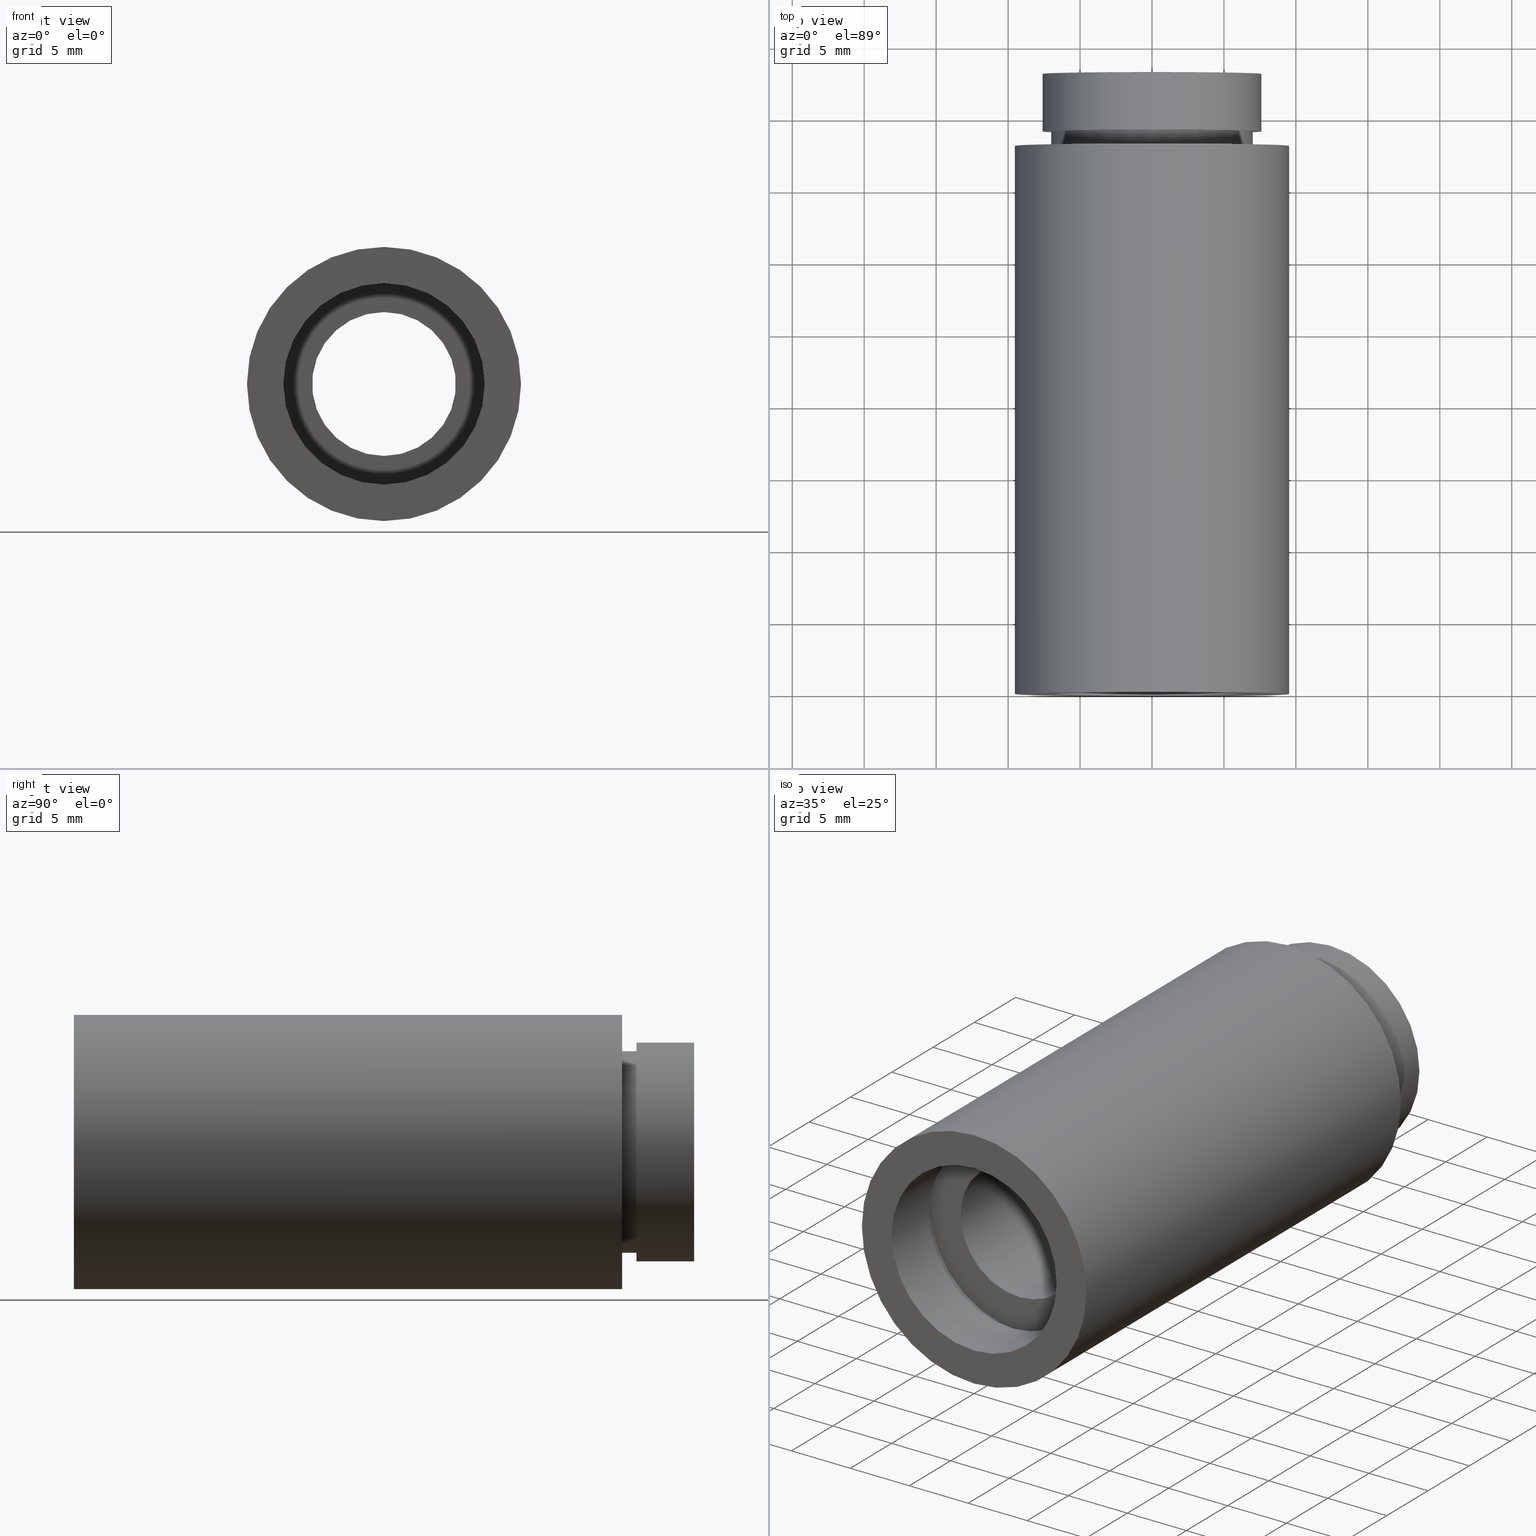
[diagram: canonical four-view strip — front | top / right | iso, engineering-drawing reading convention]
A machine part, canonical four-view strip (front | top / right | iso — engineering-drawing reading convention). The complete STEP part file that produces these views, byte-faithful:
ISO-10303-21;
HEADER;
FILE_DESCRIPTION (( 'STEP AP214' ),
    '1' );
FILE_NAME ('503090.STEP',
    '2019-09-11T06:27:03',
    ( '' ),
    ( '' ),
    'SwSTEP 2.0',
    'SolidWorks 2016',
    '' );
FILE_SCHEMA (( 'AUTOMOTIVE_DESIGN' ));
ENDSEC;

DATA;
#1 = DIRECTION ( 'NONE',  ( -0.0000000000000000000, 1.000000000000000000, -0.0000000000000000000 ) ) ;
#2 =( NAMED_UNIT ( * ) SI_UNIT ( $, .STERADIAN. ) SOLID_ANGLE_UNIT ( ) );
#3 = DIRECTION ( 'NONE',  ( 0.0000000000000000000, 0.0000000000000000000, 1.000000000000000000 ) ) ;
#4 = CIRCLE ( 'NONE', #182, 7.600000000000013000 ) ;
#5 = FILL_AREA_STYLE_COLOUR ( '', #354 ) ;
#6 = LINE ( 'NONE', #364, #163 ) ;
#7 = VERTEX_POINT ( 'NONE', #259 ) ;
#8 = SURFACE_SIDE_STYLE ('',( #289 ) ) ;
#9 = DIRECTION ( 'NONE',  ( 0.0000000000000000000, 0.0000000000000000000, 1.000000000000000000 ) ) ;
#10 = PRESENTATION_LAYER_ASSIGNMENT (  '', '', ( #539 ) ) ;
#11 =( LENGTH_UNIT ( ) NAMED_UNIT ( * ) SI_UNIT ( .MILLI., .METRE. ) );
#12 = CARTESIAN_POINT ( 'NONE',  ( 9.525000000000019900, 38.09999999999998700, 0.0000000000000000000 ) ) ;
#13 = PRESENTATION_LAYER_ASSIGNMENT (  '', '', ( #518 ) ) ;
#14 = CARTESIAN_POINT ( 'NONE',  ( 6.123233995736789000E-016, 43.09999999999998700, -5.000000000000019500 ) ) ;
#15 = LINE ( 'NONE', #415, #77 ) ;
#16 = VERTEX_POINT ( 'NONE', #64 ) ;
#17 = ORIENTED_EDGE ( 'NONE', *, *, #176, .T. ) ;
#18 = DIRECTION ( 'NONE',  ( 0.0000000000000000000, 0.0000000000000000000, 1.000000000000000000 ) ) ;
#19 = LINE ( 'NONE', #600, #408 ) ;
#20 = EDGE_LOOP ( 'NONE', ( #573, #215 ) ) ;
#21 = CIRCLE ( 'NONE', #411, 7.600000000000013000 ) ;
#22 = FILL_AREA_STYLE_COLOUR ( '', #464 ) ;
#23 = CARTESIAN_POINT ( 'NONE',  ( 0.0000000000000000000, 161.3761669434274500, 0.0000000000000000000 ) ) ;
#24 = FILL_AREA_STYLE ('',( #302 ) ) ;
#25 = CARTESIAN_POINT ( 'NONE',  ( 0.0000000000000000000, 4.499999999999976000, 0.0000000000000000000 ) ) ;
#26 = ORIENTED_EDGE ( 'NONE', *, *, #325, .T. ) ;
#27 = CYLINDRICAL_SURFACE ( 'NONE', #449, 7.000000000000020400 ) ;
#28 = CARTESIAN_POINT ( 'NONE',  ( 0.0000000000000000000, 5.499999999999976900, 0.0000000000000000000 ) ) ;
#29 = VERTEX_POINT ( 'NONE', #598 ) ;
#30 = EDGE_CURVE ( 'NONE', #151, #348, #451, .T. ) ;
#31 = MECHANICAL_DESIGN_GEOMETRIC_PRESENTATION_REPRESENTATION (  '', ( #46 ), #56 ) ;
#32 = CIRCLE ( 'NONE', #445, 7.600000000000013000 ) ;
#33 = ORIENTED_EDGE ( 'NONE', *, *, #30, .F. ) ;
#34 = DIRECTION ( 'NONE',  ( -0.0000000000000000000, 1.000000000000000000, -0.0000000000000000000 ) ) ;
#35 = FILL_AREA_STYLE_COLOUR ( '', #49 ) ;
#36 = DIRECTION ( 'NONE',  ( -0.0000000000000000000, 1.000000000000000000, -0.0000000000000000000 ) ) ;
#37 =( NAMED_UNIT ( * ) SI_UNIT ( $, .STERADIAN. ) SOLID_ANGLE_UNIT ( ) );
#38 = AXIS2_PLACEMENT_3D ( 'NONE', #608, #36, #116 ) ;
#39 = UNCERTAINTY_MEASURE_WITH_UNIT (LENGTH_MEASURE( 1.000000000000000100E-005 ), #333, 'distance_accuracy_value', 'NONE');
#40 = EDGE_LOOP ( 'NONE', ( #146, #602, #552, #270 ) ) ;
#41 = CARTESIAN_POINT ( 'NONE',  ( 0.0000000000000000000, 5.499999999999976900, 0.0000000000000000000 ) ) ;
#42 = ADVANCED_FACE ( 'NONE', ( #128 ), #556, .F. ) ;
#43 = VERTEX_POINT ( 'NONE', #597 ) ;
#44 = DIRECTION ( 'NONE',  ( 1.000000000000000000, 0.0000000000000000000, 0.0000000000000000000 ) ) ;
#45 = VERTEX_POINT ( 'NONE', #152 ) ;
#46 = STYLED_ITEM ( 'NONE', ( #208 ), #327 ) ;
#47 = CARTESIAN_POINT ( 'NONE',  ( 9.307315673519899300E-016, 39.09999999999999400, -7.600000000000013000 ) ) ;
#48 =( NAMED_UNIT ( * ) SI_UNIT ( $, .STERADIAN. ) SOLID_ANGLE_UNIT ( ) );
#49 = COLOUR_RGB ( '',1.000000000000000000, 1.000000000000000000, 1.000000000000000000 ) ;
#50 = DIRECTION ( 'NONE',  ( -0.0000000000000000000, 1.000000000000000000, -0.0000000000000000000 ) ) ;
#51 = EDGE_CURVE ( 'NONE', #70, #321, #66, .T. ) ;
#52 = ORIENTED_EDGE ( 'NONE', *, *, #81, .F. ) ;
#53 = SHAPE_DEFINITION_REPRESENTATION ( #396, #384 ) ;
#54 = ORIENTED_EDGE ( 'NONE', *, *, #553, .T. ) ;
#55 = EDGE_CURVE ( 'NONE', #622, #459, #209, .T. ) ;
#56 =( GEOMETRIC_REPRESENTATION_CONTEXT ( 3 ) GLOBAL_UNCERTAINTY_ASSIGNED_CONTEXT ( ( #461 ) ) GLOBAL_UNIT_ASSIGNED_CONTEXT ( ( #580, #189, #140 ) ) REPRESENTATION_CONTEXT ( 'NONE', 'WORKASPACE' ) );
#57 = CARTESIAN_POINT ( 'NONE',  ( 0.0000000000000000000, 43.09999999999998700, 0.0000000000000000000 ) ) ;
#58 = LINE ( 'NONE', #438, #172 ) ;
#59 = ORIENTED_EDGE ( 'NONE', *, *, #100, .F. ) ;
#60 = ORIENTED_EDGE ( 'NONE', *, *, #265, .F. ) ;
#61 = COLOUR_RGB ( '',1.000000000000000000, 1.000000000000000000, 1.000000000000000000 ) ;
#62 = DIRECTION ( 'NONE',  ( -0.0000000000000000000, 1.000000000000000000, -0.0000000000000000000 ) ) ;
#63 = UNCERTAINTY_MEASURE_WITH_UNIT (LENGTH_MEASURE( 1.000000000000000100E-005 ), #606, 'distance_accuracy_value', 'NONE');
#64 = CARTESIAN_POINT ( 'NONE',  ( 0.0000000000000000000, -2.775557561562891400E-014, 9.525000000000019900 ) ) ;
#65 = CIRCLE ( 'NONE', #87, 9.525000000000019900 ) ;
#66 = LINE ( 'NONE', #111, #447 ) ;
#67 = DIRECTION ( 'NONE',  ( -0.0000000000000000000, 1.000000000000000000, -0.0000000000000000000 ) ) ;
#68 = DIRECTION ( 'NONE',  ( -0.0000000000000000000, 1.000000000000000000, -0.0000000000000000000 ) ) ;
#69 = EDGE_CURVE ( 'NONE', #321, #495, #567, .T. ) ;
#70 = VERTEX_POINT ( 'NONE', #158 ) ;
#71 = EDGE_LOOP ( 'NONE', ( #202, #199 ) ) ;
#72 = ORIENTED_EDGE ( 'NONE', *, *, #368, .F. ) ;
#73 = DIRECTION ( 'NONE',  ( 0.0000000000000000000, 0.0000000000000000000, 1.000000000000000000 ) ) ;
#74 = CARTESIAN_POINT ( 'NONE',  ( 0.0000000000000000000, 39.09999999999999400, 0.0000000000000000000 ) ) ;
#75 = AXIS2_PLACEMENT_3D ( 'NONE', #366, #88, #123 ) ;
#76 = CARTESIAN_POINT ( 'NONE',  ( 0.0000000000000000000, 5.499999999999976900, 7.600000000000020100 ) ) ;
#77 = VECTOR ( 'NONE', #355, 1000.000000000000000 ) ;
#78 = UNCERTAINTY_MEASURE_WITH_UNIT (LENGTH_MEASURE( 1.000000000000000100E-005 ), #512, 'distance_accuracy_value', 'NONE');
#79 = FACE_OUTER_BOUND ( 'NONE', #474, .T. ) ;
#80 = FACE_BOUND ( 'NONE', #362, .T. ) ;
#81 = EDGE_CURVE ( 'NONE', #343, #503, #493, .T. ) ;
#82 = CARTESIAN_POINT ( 'NONE',  ( 0.0000000000000000000, 161.3761669434274500, 0.0000000000000000000 ) ) ;
#83 = DIRECTION ( 'NONE',  ( -0.0000000000000000000, 1.000000000000000000, -0.0000000000000000000 ) ) ;
#84 = DIRECTION ( 'NONE',  ( -0.0000000000000000000, 1.000000000000000000, 0.0000000000000000000 ) ) ;
#85 = EDGE_CURVE ( 'NONE', #7, #45, #276, .T. ) ;
#86 = ADVANCED_FACE ( 'NONE', ( #79 ), #609, .F. ) ;
#87 = AXIS2_PLACEMENT_3D ( 'NONE', #229, #611, #233 ) ;
#88 = DIRECTION ( 'NONE',  ( -0.0000000000000000000, 1.000000000000000000, -0.0000000000000000000 ) ) ;
#89 = ORIENTED_EDGE ( 'NONE', *, *, #261, .T. ) ;
#90 = CARTESIAN_POINT ( 'NONE',  ( 9.307315673519899300E-016, 43.09999999999998700, -7.600000000000013000 ) ) ;
#91 = ORIENTED_EDGE ( 'NONE', *, *, #325, .F. ) ;
#92 = CARTESIAN_POINT ( 'NONE',  ( 0.0000000000000000000, 161.3761669434274500, 5.000000000000019500 ) ) ;
#93 = CARTESIAN_POINT ( 'NONE',  ( 0.0000000000000000000, 43.09999999999998700, 0.0000000000000000000 ) ) ;
#94 = SURFACE_STYLE_FILL_AREA ( #24 ) ;
#95 =( NAMED_UNIT ( * ) PLANE_ANGLE_UNIT ( ) SI_UNIT ( $, .RADIAN. ) );
#96 = ORIENTED_EDGE ( 'NONE', *, *, #342, .F. ) ;
#97 = DIRECTION ( 'NONE',  ( 0.0000000000000000000, 0.0000000000000000000, 1.000000000000000000 ) ) ;
#98 =( GEOMETRIC_REPRESENTATION_CONTEXT ( 3 ) GLOBAL_UNCERTAINTY_ASSIGNED_CONTEXT ( ( #582 ) ) GLOBAL_UNIT_ASSIGNED_CONTEXT ( ( #596, #351, #305 ) ) REPRESENTATION_CONTEXT ( 'NONE', 'WORKASPACE' ) );
#99 = CARTESIAN_POINT ( 'NONE',  ( 0.0000000000000000000, -2.775557561562891400E-014, 7.000000000000019500 ) ) ;
#100 = EDGE_CURVE ( 'NONE', #495, #321, #106, .T. ) ;
#101 = FACE_OUTER_BOUND ( 'NONE', #550, .T. ) ;
#102 = ORIENTED_EDGE ( 'NONE', *, *, #250, .F. ) ;
#103 = EDGE_LOOP ( 'NONE', ( #400, #422, #17, #220 ) ) ;
#104 = FILL_AREA_STYLE ('',( #22 ) ) ;
#105 = LINE ( 'NONE', #277, #535 ) ;
#106 = CIRCLE ( 'NONE', #437, 5.000000000000019500 ) ;
#107 = CYLINDRICAL_SURFACE ( 'NONE', #442, 7.600000000000020100 ) ;
#108 = SURFACE_SIDE_STYLE ('',( #94 ) ) ;
#109 = EDGE_CURVE ( 'NONE', #16, #186, #486, .T. ) ;
#110 = ORIENTED_EDGE ( 'NONE', *, *, #250, .T. ) ;
#111 = CARTESIAN_POINT ( 'NONE',  ( 6.123233995736789000E-016, 161.3761669434274500, -5.000000000000019500 ) ) ;
#112 = EDGE_CURVE ( 'NONE', #590, #70, #185, .T. ) ;
#113 = AXIS2_PLACEMENT_3D ( 'NONE', #291, #337, #3 ) ;
#114 = ORIENTED_EDGE ( 'NONE', *, *, #143, .F. ) ;
#115 = DIRECTION ( 'NONE',  ( -0.0000000000000000000, 1.000000000000000000, -0.0000000000000000000 ) ) ;
#116 = DIRECTION ( 'NONE',  ( 0.0000000000000000000, 0.0000000000000000000, 1.000000000000000000 ) ) ;
#117 =( NAMED_UNIT ( * ) PLANE_ANGLE_UNIT ( ) SI_UNIT ( $, .RADIAN. ) );
#118 = CIRCLE ( 'NONE', #554, 5.000000000000019500 ) ;
#119 = CARTESIAN_POINT ( 'NONE',  ( 0.0000000000000000000, 43.09999999999998700, 0.0000000000000000000 ) ) ;
#120 = EDGE_LOOP ( 'NONE', ( #356, #54 ) ) ;
#121 = CARTESIAN_POINT ( 'NONE',  ( 7.600000000000020100, 5.499999999999984000, 0.0000000000000000000 ) ) ;
#122 = DIRECTION ( 'NONE',  ( 0.0000000000000000000, 0.0000000000000000000, 1.000000000000000000 ) ) ;
#123 = DIRECTION ( 'NONE',  ( 0.0000000000000000000, 0.0000000000000000000, 1.000000000000000000 ) ) ;
#124 = CARTESIAN_POINT ( 'NONE',  ( 0.0000000000000000000, -2.775557561562891400E-014, 0.0000000000000000000 ) ) ;
#125 = STYLED_ITEM ( 'NONE', ( #458 ), #429 ) ;
#126 = DIRECTION ( 'NONE',  ( 0.0000000000000000000, 0.0000000000000000000, 1.000000000000000000 ) ) ;
#127 = DIRECTION ( 'NONE',  ( 0.0000000000000000000, 0.0000000000000000000, 1.000000000000000000 ) ) ;
#128 = FACE_OUTER_BOUND ( 'NONE', #254, .T. ) ;
#129 = ADVANCED_FACE ( 'NONE', ( #314 ), #549, .T. ) ;
#130 = ORIENTED_EDGE ( 'NONE', *, *, #112, .T. ) ;
#131 = ORIENTED_EDGE ( 'NONE', *, *, #194, .T. ) ;
#132 = EDGE_CURVE ( 'NONE', #200, #329, #287, .T. ) ;
#133 = DIRECTION ( 'NONE',  ( 0.0000000000000000000, 0.0000000000000000000, 1.000000000000000000 ) ) ;
#134 = APPLICATION_CONTEXT ( 'automotive_design' ) ;
#135 =( LENGTH_UNIT ( ) NAMED_UNIT ( * ) SI_UNIT ( .MILLI., .METRE. ) );
#136 = CIRCLE ( 'NONE', #352, 7.000000000000020400 ) ;
#137 = AXIS2_PLACEMENT_3D ( 'NONE', #479, #187, #44 ) ;
#138 = ORIENTED_EDGE ( 'NONE', *, *, #176, .F. ) ;
#139 = APPLICATION_PROTOCOL_DEFINITION ( 'draft international standard', 'automotive_design', 1998, #378 ) ;
#140 =( NAMED_UNIT ( * ) SI_UNIT ( $, .STERADIAN. ) SOLID_ANGLE_UNIT ( ) );
#141 = MECHANICAL_DESIGN_GEOMETRIC_PRESENTATION_REPRESENTATION (  '', ( #216 ), #98 ) ;
#142 = DIRECTION ( 'NONE',  ( 0.0000000000000000000, 0.0000000000000000000, 1.000000000000000000 ) ) ;
#143 = EDGE_CURVE ( 'NONE', #503, #29, #19, .T. ) ;
#144 = ORIENTED_EDGE ( 'NONE', *, *, #265, .T. ) ;
#145 = PRESENTATION_STYLE_ASSIGNMENT (( #335 ) ) ;
#146 = ORIENTED_EDGE ( 'NONE', *, *, #85, .T. ) ;
#147 = ORIENTED_EDGE ( 'NONE', *, *, #148, .F. ) ;
#148 = EDGE_CURVE ( 'NONE', #343, #508, #6, .T. ) ;
#149 = DIRECTION ( 'NONE',  ( 0.0000000000000000000, -0.0000000000000000000, -1.000000000000000000 ) ) ;
#150 = AXIS2_PLACEMENT_3D ( 'NONE', #421, #526, #586 ) ;
#151 = VERTEX_POINT ( 'NONE', #76 ) ;
#152 = CARTESIAN_POINT ( 'NONE',  ( 8.572527594031490000E-016, 38.09999999999999400, -7.000000000000014200 ) ) ;
#153 = DIRECTION ( 'NONE',  ( -0.0000000000000000000, 1.000000000000000000, -0.0000000000000000000 ) ) ;
#154 = EDGE_CURVE ( 'NONE', #346, #218, #393, .T. ) ;
#155 = ORIENTED_EDGE ( 'NONE', *, *, #345, .F. ) ;
#156 = PRESENTATION_LAYER_ASSIGNMENT (  '', '', ( #125 ) ) ;
#157 = ORIENTED_EDGE ( 'NONE', *, *, #255, .T. ) ;
#158 = CARTESIAN_POINT ( 'NONE',  ( 6.123233995736789000E-016, 5.499999999999976900, -5.000000000000019500 ) ) ;
#159 = ORIENTED_EDGE ( 'NONE', *, *, #148, .T. ) ;
#160 = EDGE_CURVE ( 'NONE', #186, #16, #65, .T. ) ;
#161 = SURFACE_STYLE_USAGE ( .BOTH. , #304 ) ;
#162 = FILL_AREA_STYLE ('',( #605 ) ) ;
#163 = VECTOR ( 'NONE', #223, 1000.000000000000000 ) ;
#164 = EDGE_LOOP ( 'NONE', ( #588, #157 ) ) ;
#165 = DIRECTION ( 'NONE',  ( -0.0000000000000000000, 1.000000000000000000, -0.0000000000000000000 ) ) ;
#166 = CARTESIAN_POINT ( 'NONE',  ( 0.0000000000000000000, 161.3761669434274500, 0.0000000000000000000 ) ) ;
#167 = DIRECTION ( 'NONE',  ( 0.0000000000000000000, 0.0000000000000000000, 1.000000000000000000 ) ) ;
#168 = AXIS2_PLACEMENT_3D ( 'NONE', #203, #540, #149 ) ;
#169 = DIRECTION ( 'NONE',  ( -0.0000000000000000000, 1.000000000000000000, -0.0000000000000000000 ) ) ;
#170 = CARTESIAN_POINT ( 'NONE',  ( 0.0000000000000000000, 38.09999999999999400, 0.0000000000000000000 ) ) ;
#171 = CARTESIAN_POINT ( 'NONE',  ( 7.000000000000019500, -1.650046791174882700E-014, 0.0000000000000000000 ) ) ;
#172 = VECTOR ( 'NONE', #488, 1000.000000000000000 ) ;
#173 = DIRECTION ( 'NONE',  ( -0.0000000000000000000, 1.000000000000000000, -0.0000000000000000000 ) ) ;
#174 = COLOUR_RGB ( '',1.000000000000000000, 1.000000000000000000, 1.000000000000000000 ) ;
#175 = PRESENTATION_STYLE_ASSIGNMENT (( #531 ) ) ;
#176 = EDGE_CURVE ( 'NONE', #16, #391, #15, .T. ) ;
#177 = ORIENTED_EDGE ( 'NONE', *, *, #109, .F. ) ;
#178 = ADVANCED_FACE ( 'NONE', ( #319, #252 ), #219, .F. ) ;
#179 = CARTESIAN_POINT ( 'NONE',  ( 0.0000000000000000000, 4.499999999999976000, 0.0000000000000000000 ) ) ;
#180 = CARTESIAN_POINT ( 'NONE',  ( 0.0000000000000000000, 38.09999999999999400, 0.0000000000000000000 ) ) ;
#181 = EDGE_CURVE ( 'NONE', #186, #476, #105, .T. ) ;
#182 = AXIS2_PLACEMENT_3D ( 'NONE', #57, #492, #349 ) ;
#183 = DIRECTION ( 'NONE',  ( 0.0000000000000000000, 0.0000000000000000000, 1.000000000000000000 ) ) ;
#184 = ORIENTED_EDGE ( 'NONE', *, *, #69, .F. ) ;
#185 = CIRCLE ( 'NONE', #467, 5.000000000000019500 ) ;
#186 = VERTEX_POINT ( 'NONE', #320 ) ;
#187 = DIRECTION ( 'NONE',  ( 0.0000000000000000000, 0.0000000000000000000, 1.000000000000000000 ) ) ;
#188 = SURFACE_STYLE_FILL_AREA ( #316 ) ;
#189 =( NAMED_UNIT ( * ) PLANE_ANGLE_UNIT ( ) SI_UNIT ( $, .RADIAN. ) );
#190 = LINE ( 'NONE', #92, #257 ) ;
#191 = AXIS2_PLACEMENT_3D ( 'NONE', #171, #84, #566 ) ;
#192 = ORIENTED_EDGE ( 'NONE', *, *, #282, .T. ) ;
#193 = FACE_OUTER_BOUND ( 'NONE', #456, .T. ) ;
#194 = EDGE_CURVE ( 'NONE', #503, #343, #515, .T. ) ;
#195 =( NAMED_UNIT ( * ) PLANE_ANGLE_UNIT ( ) SI_UNIT ( $, .RADIAN. ) );
#196 = AXIS2_PLACEMENT_3D ( 'NONE', #621, #328, #279 ) ;
#197 = FILL_AREA_STYLE_COLOUR ( '', #465 ) ;
#198 = EDGE_CURVE ( 'NONE', #391, #476, #525, .T. ) ;
#199 = ORIENTED_EDGE ( 'NONE', *, *, #376, .T. ) ;
#200 = VERTEX_POINT ( 'NONE', #516 ) ;
#201 = STYLED_ITEM ( 'NONE', ( #175 ), #384 ) ;
#202 = ORIENTED_EDGE ( 'NONE', *, *, #342, .T. ) ;
#203 = CARTESIAN_POINT ( 'NONE',  ( 7.000000000000020400, 4.499999999999983100, 0.0000000000000000000 ) ) ;
#204 = AXIS2_PLACEMENT_3D ( 'NONE', #221, #563, #167 ) ;
#205 = DIRECTION ( 'NONE',  ( 0.0000000000000000000, -1.000000000000000000, 0.0000000000000000000 ) ) ;
#206 = FACE_OUTER_BOUND ( 'NONE', #20, .T. ) ;
#207 = DIRECTION ( 'NONE',  ( 0.0000000000000000000, 0.0000000000000000000, 1.000000000000000000 ) ) ;
#208 = PRESENTATION_STYLE_ASSIGNMENT (( #381 ) ) ;
#209 = CIRCLE ( 'NONE', #211, 7.600000000000019200 ) ;
#210 = DIRECTION ( 'NONE',  ( -0.0000000000000000000, 1.000000000000000000, -0.0000000000000000000 ) ) ;
#211 = AXIS2_PLACEMENT_3D ( 'NONE', #25, #67, #353 ) ;
#212 = UNCERTAINTY_MEASURE_WITH_UNIT (LENGTH_MEASURE( 1.000000000000000100E-005 ), #522, 'distance_accuracy_value', 'NONE');
#213 = AXIS2_PLACEMENT_3D ( 'NONE', #468, #470, #290 ) ;
#214 = EDGE_CURVE ( 'NONE', #590, #495, #190, .T. ) ;
#215 = ORIENTED_EDGE ( 'NONE', *, *, #612, .T. ) ;
#216 = STYLED_ITEM ( 'NONE', ( #446 ), #424 ) ;
#217 = CYLINDRICAL_SURFACE ( 'NONE', #395, 7.600000000000013000 ) ;
#218 = VERTEX_POINT ( 'NONE', #90 ) ;
#219 = PLANE ( 'NONE',  #246 ) ;
#220 = ORIENTED_EDGE ( 'NONE', *, *, #255, .F. ) ;
#221 = CARTESIAN_POINT ( 'NONE',  ( 0.0000000000000000000, 161.3761669434274500, 0.0000000000000000000 ) ) ;
#222 = DIRECTION ( 'NONE',  ( -0.0000000000000000000, 1.000000000000000000, -0.0000000000000000000 ) ) ;
#223 = DIRECTION ( 'NONE',  ( -0.0000000000000000000, 1.000000000000000000, -0.0000000000000000000 ) ) ;
#224 = COLOUR_RGB ( '',1.000000000000000000, 1.000000000000000000, 1.000000000000000000 ) ;
#225 = PLANE ( 'NONE',  #482 ) ;
#226 = PRODUCT ( '503090', '503090', '', ( #426 ) ) ;
#227 = CARTESIAN_POINT ( 'NONE',  ( 0.0000000000000000000, 5.499999999999976900, 0.0000000000000000000 ) ) ;
#228 = CARTESIAN_POINT ( 'NONE',  ( 0.0000000000000000000, 39.09999999999999400, 0.0000000000000000000 ) ) ;
#229 = CARTESIAN_POINT ( 'NONE',  ( 0.0000000000000000000, -2.775557561562891400E-014, 0.0000000000000000000 ) ) ;
#230 = UNCERTAINTY_MEASURE_WITH_UNIT (LENGTH_MEASURE( 1.000000000000000100E-005 ), #11, 'distance_accuracy_value', 'NONE');
#231 = MECHANICAL_DESIGN_GEOMETRIC_PRESENTATION_REPRESENTATION (  '', ( #547 ), #262 ) ;
#232 =( NAMED_UNIT ( * ) SI_UNIT ( $, .STERADIAN. ) SOLID_ANGLE_UNIT ( ) );
#233 = DIRECTION ( 'NONE',  ( 0.0000000000000000000, 0.0000000000000000000, 1.000000000000000000 ) ) ;
#234 =( NAMED_UNIT ( * ) PLANE_ANGLE_UNIT ( ) SI_UNIT ( $, .RADIAN. ) );
#235 = ORIENTED_EDGE ( 'NONE', *, *, #501, .T. ) ;
#236 = FACE_OUTER_BOUND ( 'NONE', #164, .T. ) ;
#237 = ORIENTED_EDGE ( 'NONE', *, *, #143, .T. ) ;
#238 = CARTESIAN_POINT ( 'NONE',  ( 0.0000000000000000000, 161.3761669434274500, 0.0000000000000000000 ) ) ;
#239 = DIRECTION ( 'NONE',  ( 0.0000000000000000000, 0.0000000000000000000, 1.000000000000000000 ) ) ;
#240 = ADVANCED_FACE ( 'NONE', ( #399 ), #306, .T. ) ;
#241 = CARTESIAN_POINT ( 'NONE',  ( 7.600000000000013000, 43.09999999999998700, 0.0000000000000000000 ) ) ;
#242 = SURFACE_SIDE_STYLE ('',( #371 ) ) ;
#243 = MECHANICAL_DESIGN_GEOMETRIC_PRESENTATION_REPRESENTATION (  '', ( #201 ), #267 ) ;
#244 = SURFACE_SIDE_STYLE ('',( #485 ) ) ;
#245 = ORIENTED_EDGE ( 'NONE', *, *, #112, .F. ) ;
#246 = AXIS2_PLACEMENT_3D ( 'NONE', #241, #614, #475 ) ;
#247 = FACE_BOUND ( 'NONE', #599, .T. ) ;
#248 =( NAMED_UNIT ( * ) PLANE_ANGLE_UNIT ( ) SI_UNIT ( $, .RADIAN. ) );
#249 = PLANE ( 'NONE',  #311 ) ;
#250 = EDGE_CURVE ( 'NONE', #459, #348, #607, .T. ) ;
#251 = ORIENTED_EDGE ( 'NONE', *, *, #51, .F. ) ;
#252 = FACE_OUTER_BOUND ( 'NONE', #71, .T. ) ;
#253 = PRESENTATION_STYLE_ASSIGNMENT (( #435 ) ) ;
#254 = EDGE_LOOP ( 'NONE', ( #102, #295, #410, #288 ) ) ;
#255 = EDGE_CURVE ( 'NONE', #476, #391, #268, .T. ) ;
#256 = MECHANICAL_DESIGN_GEOMETRIC_PRESENTATION_REPRESENTATION (  '', ( #125 ), #283 ) ;
#257 = VECTOR ( 'NONE', #173, 1000.000000000000000 ) ;
#258 = ORIENTED_EDGE ( 'NONE', *, *, #214, .T. ) ;
#259 = CARTESIAN_POINT ( 'NONE',  ( 0.0000000000000000000, 38.09999999999999400, 7.000000000000014200 ) ) ;
#260 = DIRECTION ( 'NONE',  ( 0.0000000000000000000, 0.0000000000000000000, 1.000000000000000000 ) ) ;
#261 = EDGE_CURVE ( 'NONE', #70, #590, #118, .T. ) ;
#262 =( GEOMETRIC_REPRESENTATION_CONTEXT ( 3 ) GLOBAL_UNCERTAINTY_ASSIGNED_CONTEXT ( ( #78 ) ) GLOBAL_UNIT_ASSIGNED_CONTEXT ( ( #512, #117, #317 ) ) REPRESENTATION_CONTEXT ( 'NONE', 'WORKASPACE' ) );
#263 = COLOUR_RGB ( '',1.000000000000000000, 1.000000000000000000, 1.000000000000000000 ) ;
#264 = ORIENTED_EDGE ( 'NONE', *, *, #214, .F. ) ;
#265 = EDGE_CURVE ( 'NONE', #45, #7, #389, .T. ) ;
#266 = CARTESIAN_POINT ( 'NONE',  ( 0.0000000000000000000, 43.09999999999998700, 0.0000000000000000000 ) ) ;
#267 =( GEOMETRIC_REPRESENTATION_CONTEXT ( 3 ) GLOBAL_UNCERTAINTY_ASSIGNED_CONTEXT ( ( #39 ) ) GLOBAL_UNIT_ASSIGNED_CONTEXT ( ( #333, #248, #380 ) ) REPRESENTATION_CONTEXT ( 'NONE', 'WORKASPACE' ) );
#268 = CIRCLE ( 'NONE', #326, 9.525000000000019900 ) ;
#269 = DIRECTION ( 'NONE',  ( -0.0000000000000000000, 1.000000000000000000, -0.0000000000000000000 ) ) ;
#270 = ORIENTED_EDGE ( 'NONE', *, *, #454, .F. ) ;
#271 = DIRECTION ( 'NONE',  ( -0.0000000000000000000, 1.000000000000000000, -0.0000000000000000000 ) ) ;
#272 = AXIS2_PLACEMENT_3D ( 'NONE', #124, #575, #281 ) ;
#273 = SURFACE_STYLE_USAGE ( .BOTH. , #414 ) ;
#274 = ORIENTED_EDGE ( 'NONE', *, *, #109, .T. ) ;
#275 = DIRECTION ( 'NONE',  ( 0.0000000000000000000, 0.0000000000000000000, 1.000000000000000000 ) ) ;
#276 = CIRCLE ( 'NONE', #504, 7.000000000000014200 ) ;
#277 = CARTESIAN_POINT ( 'NONE',  ( 1.166476076187856400E-015, 161.3761669434274500, -9.525000000000019900 ) ) ;
#278 = ORIENTED_EDGE ( 'NONE', *, *, #612, .F. ) ;
#279 = DIRECTION ( 'NONE',  ( 0.0000000000000000000, 0.0000000000000000000, 1.000000000000000000 ) ) ;
#280 = ADVANCED_FACE ( 'NONE', ( #299, #565 ), #331, .F. ) ;
#281 = DIRECTION ( 'NONE',  ( 0.0000000000000000000, 0.0000000000000000000, 1.000000000000000000 ) ) ;
#282 = EDGE_CURVE ( 'NONE', #29, #508, #136, .T. ) ;
#283 =( GEOMETRIC_REPRESENTATION_CONTEXT ( 3 ) GLOBAL_UNCERTAINTY_ASSIGNED_CONTEXT ( ( #212 ) ) GLOBAL_UNIT_ASSIGNED_CONTEXT ( ( #522, #95, #37 ) ) REPRESENTATION_CONTEXT ( 'NONE', 'WORKASPACE' ) );
#284 = ADVANCED_FACE ( 'NONE', ( #502 ), #359, .T. ) ;
#285 = CARTESIAN_POINT ( 'NONE',  ( 0.0000000000000000000, 4.499999999999976000, 7.600000000000019200 ) ) ;
#286 = FACE_BOUND ( 'NONE', #315, .T. ) ;
#287 = CIRCLE ( 'NONE', #478, 7.000000000000014200 ) ;
#288 = ORIENTED_EDGE ( 'NONE', *, *, #30, .T. ) ;
#289 = SURFACE_STYLE_FILL_AREA ( #385 ) ;
#290 = DIRECTION ( 'NONE',  ( 0.0000000000000000000, 0.0000000000000000000, 1.000000000000000000 ) ) ;
#291 = CARTESIAN_POINT ( 'NONE',  ( 0.0000000000000000000, 161.3761669434274500, 0.0000000000000000000 ) ) ;
#292 = DIRECTION ( 'NONE',  ( -0.0000000000000000000, 1.000000000000000000, -0.0000000000000000000 ) ) ;
#293 = CYLINDRICAL_SURFACE ( 'NONE', #113, 7.000000000000020400 ) ;
#294 = DIRECTION ( 'NONE',  ( -0.0000000000000000000, 1.000000000000000000, -0.0000000000000000000 ) ) ;
#295 = ORIENTED_EDGE ( 'NONE', *, *, #55, .F. ) ;
#296 = AXIS2_PLACEMENT_3D ( 'NONE', #238, #569, #471 ) ;
#297 = CIRCLE ( 'NONE', #462, 7.600000000000019200 ) ;
#298 = ORIENTED_EDGE ( 'NONE', *, *, #368, .T. ) ;
#299 = FACE_OUTER_BOUND ( 'NONE', #401, .T. ) ;
#300 = ORIENTED_EDGE ( 'NONE', *, *, #261, .F. ) ;
#301 = CARTESIAN_POINT ( 'NONE',  ( 0.0000000000000000000, 38.09999999999999400, 9.525000000000019900 ) ) ;
#302 = FILL_AREA_STYLE_COLOUR ( '', #224 ) ;
#303 = AXIS2_PLACEMENT_3D ( 'NONE', #340, #50, #18 ) ;
#304 = SURFACE_SIDE_STYLE ('',( #318 ) ) ;
#305 =( NAMED_UNIT ( * ) SI_UNIT ( $, .STERADIAN. ) SOLID_ANGLE_UNIT ( ) );
#306 = CYLINDRICAL_SURFACE ( 'NONE', #296, 9.525000000000019900 ) ;
#307 = VECTOR ( 'NONE', #292, 1000.000000000000000 ) ;
#308 = ORIENTED_EDGE ( 'NONE', *, *, #181, .T. ) ;
#309 = DIRECTION ( 'NONE',  ( 0.0000000000000000000, 0.0000000000000000000, 1.000000000000000000 ) ) ;
#310 = AXIS2_PLACEMENT_3D ( 'NONE', #28, #499, #207 ) ;
#311 = AXIS2_PLACEMENT_3D ( 'NONE', #12, #205, #497 ) ;
#312 = SURFACE_SIDE_STYLE ('',( #584 ) ) ;
#313 = FACE_OUTER_BOUND ( 'NONE', #373, .T. ) ;
#314 = FACE_OUTER_BOUND ( 'NONE', #394, .T. ) ;
#315 = EDGE_LOOP ( 'NONE', ( #558, #60 ) ) ;
#316 = FILL_AREA_STYLE ('',( #35 ) ) ;
#317 =( NAMED_UNIT ( * ) SI_UNIT ( $, .STERADIAN. ) SOLID_ANGLE_UNIT ( ) );
#318 = SURFACE_STYLE_FILL_AREA ( #104 ) ;
#319 = FACE_BOUND ( 'NONE', #543, .T. ) ;
#320 = CARTESIAN_POINT ( 'NONE',  ( 1.166476076187856400E-015, -2.775557561562891400E-014, -9.525000000000019900 ) ) ;
#321 = VERTEX_POINT ( 'NONE', #14 ) ;
#322 = CIRCLE ( 'NONE', #545, 7.000000000000014200 ) ;
#323 = DIRECTION ( 'NONE',  ( -0.0000000000000000000, 1.000000000000000000, -0.0000000000000000000 ) ) ;
#324 = MANIFOLD_SOLID_BREP ( '��ת1', #619 ) ;
#325 = EDGE_CURVE ( 'NONE', #348, #151, #594, .T. ) ;
#326 = AXIS2_PLACEMENT_3D ( 'NONE', #180, #521, #183 ) ;
#327 = ADVANCED_FACE ( 'NONE', ( #418 ), #293, .F. ) ;
#328 = DIRECTION ( 'NONE',  ( -0.0000000000000000000, 1.000000000000000000, -0.0000000000000000000 ) ) ;
#329 = VERTEX_POINT ( 'NONE', #441 ) ;
#330 = ORIENTED_EDGE ( 'NONE', *, *, #154, .F. ) ;
#331 = PLANE ( 'NONE',  #150 ) ;
#332 = ORIENTED_EDGE ( 'NONE', *, *, #69, .T. ) ;
#333 =( LENGTH_UNIT ( ) NAMED_UNIT ( * ) SI_UNIT ( .MILLI., .METRE. ) );
#334 = CARTESIAN_POINT ( 'NONE',  ( 8.572527594031490000E-016, 161.3761669434274500, -7.000000000000014200 ) ) ;
#335 = SURFACE_STYLE_USAGE ( .BOTH. , #244 ) ;
#336 = PRODUCT_DEFINITION ( 'δ֪', '', #453, #534 ) ;
#337 = DIRECTION ( 'NONE',  ( -0.0000000000000000000, 1.000000000000000000, -0.0000000000000000000 ) ) ;
#338 = ORIENTED_EDGE ( 'NONE', *, *, #198, .F. ) ;
#339 = FILL_AREA_STYLE_COLOUR ( '', #263 ) ;
#340 = CARTESIAN_POINT ( 'NONE',  ( 0.0000000000000000000, 39.09999999999999400, 0.0000000000000000000 ) ) ;
#341 = FILL_AREA_STYLE ('',( #197 ) ) ;
#342 = EDGE_CURVE ( 'NONE', #43, #218, #32, .T. ) ;
#343 = VERTEX_POINT ( 'NONE', #99 ) ;
#344 = CYLINDRICAL_SURFACE ( 'NONE', #196, 5.000000000000019500 ) ;
#345 = EDGE_CURVE ( 'NONE', #390, #43, #58, .T. ) ;
#346 = VERTEX_POINT ( 'NONE', #47 ) ;
#347 = STYLED_ITEM ( 'NONE', ( #524 ), #469 ) ;
#348 = VERTEX_POINT ( 'NONE', #583 ) ;
#349 = DIRECTION ( 'NONE',  ( 0.0000000000000000000, 0.0000000000000000000, 1.000000000000000000 ) ) ;
#350 = ORIENTED_EDGE ( 'NONE', *, *, #423, .T. ) ;
#351 =( NAMED_UNIT ( * ) PLANE_ANGLE_UNIT ( ) SI_UNIT ( $, .RADIAN. ) );
#352 = AXIS2_PLACEMENT_3D ( 'NONE', #487, #484, #97 ) ;
#353 = DIRECTION ( 'NONE',  ( 0.0000000000000000000, 0.0000000000000000000, 1.000000000000000000 ) ) ;
#354 = COLOUR_RGB ( '',1.000000000000000000, 1.000000000000000000, 1.000000000000000000 ) ;
#355 = DIRECTION ( 'NONE',  ( -0.0000000000000000000, 1.000000000000000000, -0.0000000000000000000 ) ) ;
#356 = ORIENTED_EDGE ( 'NONE', *, *, #132, .T. ) ;
#357 = CARTESIAN_POINT ( 'NONE',  ( 0.0000000000000000000, 161.3761669434274500, 0.0000000000000000000 ) ) ;
#358 = FACE_OUTER_BOUND ( 'NONE', #444, .T. ) ;
#359 = CYLINDRICAL_SURFACE ( 'NONE', #489, 7.000000000000014200 ) ;
#360 = PRODUCT_RELATED_PRODUCT_CATEGORY ( 'part', '', ( #226 ) ) ;
#361 = DIRECTION ( 'NONE',  ( 0.0000000000000000000, 0.0000000000000000000, 1.000000000000000000 ) ) ;
#362 = EDGE_LOOP ( 'NONE', ( #527, #131 ) ) ;
#363 = FACE_OUTER_BOUND ( 'NONE', #374, .T. ) ;
#364 = CARTESIAN_POINT ( 'NONE',  ( 0.0000000000000000000, 161.3761669434274500, 7.000000000000020400 ) ) ;
#365 = CARTESIAN_POINT ( 'NONE',  ( 0.0000000000000000000, 39.09999999999999400, 0.0000000000000000000 ) ) ;
#366 = CARTESIAN_POINT ( 'NONE',  ( 0.0000000000000000000, 161.3761669434274500, 0.0000000000000000000 ) ) ;
#367 = DIRECTION ( 'NONE',  ( -0.0000000000000000000, 1.000000000000000000, -0.0000000000000000000 ) ) ;
#368 = EDGE_CURVE ( 'NONE', #346, #390, #541, .T. ) ;
#369 = FILL_AREA_STYLE_COLOUR ( '', #61 ) ;
#370 = ADVANCED_FACE ( 'NONE', ( #286, #236 ), #249, .F. ) ;
#371 = SURFACE_STYLE_FILL_AREA ( #341 ) ;
#372 = CARTESIAN_POINT ( 'NONE',  ( 9.307315673519909100E-016, 161.3761669434274500, -7.600000000000020100 ) ) ;
#373 = EDGE_LOOP ( 'NONE', ( #114, #52, #159, #350 ) ) ;
#374 = EDGE_LOOP ( 'NONE', ( #278, #110, #26, #430 ) ) ;
#375 = DIRECTION ( 'NONE',  ( -0.0000000000000000000, 1.000000000000000000, 0.0000000000000000000 ) ) ;
#376 = EDGE_CURVE ( 'NONE', #218, #43, #4, .T. ) ;
#377 = PRESENTATION_LAYER_ASSIGNMENT (  '', '', ( #347 ) ) ;
#378 = APPLICATION_CONTEXT ( 'automotive_design' ) ;
#379 = ADVANCED_FACE ( 'NONE', ( #592, #206 ), #591, .F. ) ;
#380 =( NAMED_UNIT ( * ) SI_UNIT ( $, .STERADIAN. ) SOLID_ANGLE_UNIT ( ) );
#381 = SURFACE_STYLE_USAGE ( .BOTH. , #242 ) ;
#382 = ORIENTED_EDGE ( 'NONE', *, *, #618, .F. ) ;
#383 = DIRECTION ( 'NONE',  ( -0.0000000000000000000, 1.000000000000000000, -0.0000000000000000000 ) ) ;
#384 = ADVANCED_BREP_SHAPE_REPRESENTATION ( '503090', ( #324, #137 ), #572 ) ;
#385 = FILL_AREA_STYLE ('',( #339 ) ) ;
#386 = CARTESIAN_POINT ( 'NONE',  ( 0.0000000000000000000, 161.3761669434274500, 0.0000000000000000000 ) ) ;
#387 = EDGE_CURVE ( 'NONE', #622, #151, #407, .T. ) ;
#388 = MECHANICAL_DESIGN_GEOMETRIC_PRESENTATION_REPRESENTATION (  '', ( #518 ), #533 ) ;
#389 = CIRCLE ( 'NONE', #455, 7.000000000000014200 ) ;
#390 = VERTEX_POINT ( 'NONE', #392 ) ;
#391 = VERTEX_POINT ( 'NONE', #301 ) ;
#392 = CARTESIAN_POINT ( 'NONE',  ( 0.0000000000000000000, 39.09999999999999400, 7.600000000000013000 ) ) ;
#393 = LINE ( 'NONE', #460, #506 ) ;
#394 = EDGE_LOOP ( 'NONE', ( #274, #308, #338, #138 ) ) ;
#395 = AXIS2_PLACEMENT_3D ( 'NONE', #397, #210, #548 ) ;
#396 = PRODUCT_DEFINITION_SHAPE ( 'NONE', 'NONE',  #336 ) ;
#397 = CARTESIAN_POINT ( 'NONE',  ( 0.0000000000000000000, 161.3761669434274500, 0.0000000000000000000 ) ) ;
#398 = ORIENTED_EDGE ( 'NONE', *, *, #501, .F. ) ;
#399 = FACE_OUTER_BOUND ( 'NONE', #103, .T. ) ;
#400 = ORIENTED_EDGE ( 'NONE', *, *, #181, .F. ) ;
#401 = EDGE_LOOP ( 'NONE', ( #398, #72 ) ) ;
#402 = DIRECTION ( 'NONE',  ( 0.0000000000000000000, 0.0000000000000000000, 1.000000000000000000 ) ) ;
#403 = DIRECTION ( 'NONE',  ( -0.0000000000000000000, 1.000000000000000000, -0.0000000000000000000 ) ) ;
#404 = AXIS2_PLACEMENT_3D ( 'NONE', #266, #413, #557 ) ;
#405 = MECHANICAL_DESIGN_GEOMETRIC_PRESENTATION_REPRESENTATION (  '', ( #347 ), #505 ) ;
#406 = DIRECTION ( 'NONE',  ( -0.0000000000000000000, 1.000000000000000000, -0.0000000000000000000 ) ) ;
#407 = LINE ( 'NONE', #542, #574 ) ;
#408 = VECTOR ( 'NONE', #510, 1000.000000000000000 ) ;
#409 = DIRECTION ( 'NONE',  ( 0.0000000000000000000, 0.0000000000000000000, 1.000000000000000000 ) ) ;
#410 = ORIENTED_EDGE ( 'NONE', *, *, #387, .T. ) ;
#411 = AXIS2_PLACEMENT_3D ( 'NONE', #365, #222, #361 ) ;
#412 = LINE ( 'NONE', #334, #307 ) ;
#413 = DIRECTION ( 'NONE',  ( -0.0000000000000000000, 1.000000000000000000, -0.0000000000000000000 ) ) ;
#414 = SURFACE_SIDE_STYLE ('',( #188 ) ) ;
#415 = CARTESIAN_POINT ( 'NONE',  ( 0.0000000000000000000, 161.3761669434274500, 9.525000000000019900 ) ) ;
#416 = CARTESIAN_POINT ( 'NONE',  ( 0.0000000000000000000, 4.499999999999976000, 7.000000000000020400 ) ) ;
#417 = CIRCLE ( 'NONE', #587, 7.000000000000020400 ) ;
#418 = FACE_OUTER_BOUND ( 'NONE', #601, .T. ) ;
#419 = DIRECTION ( 'NONE',  ( -0.0000000000000000000, 1.000000000000000000, -0.0000000000000000000 ) ) ;
#420 = ORIENTED_EDGE ( 'NONE', *, *, #454, .T. ) ;
#421 = CARTESIAN_POINT ( 'NONE',  ( 7.000000000000014200, 39.09999999999998700, 0.0000000000000000000 ) ) ;
#422 = ORIENTED_EDGE ( 'NONE', *, *, #160, .T. ) ;
#423 = EDGE_CURVE ( 'NONE', #508, #29, #417, .T. ) ;
#424 = ADVANCED_FACE ( 'NONE', ( #101 ), #217, .T. ) ;
#425 = AXIS2_PLACEMENT_3D ( 'NONE', #481, #383, #9 ) ;
#426 = PRODUCT_CONTEXT ( 'NONE', #378, 'mechanical' ) ;
#427 = UNCERTAINTY_MEASURE_WITH_UNIT (LENGTH_MEASURE( 1.000000000000000100E-005 ), #511, 'distance_accuracy_value', 'NONE');
#428 = FILL_AREA_STYLE ('',( #369 ) ) ;
#429 = ADVANCED_FACE ( 'NONE', ( #358 ), #344, .F. ) ;
#430 = ORIENTED_EDGE ( 'NONE', *, *, #387, .F. ) ;
#431 = ORIENTED_EDGE ( 'NONE', *, *, #160, .F. ) ;
#432 =( NAMED_UNIT ( * ) PLANE_ANGLE_UNIT ( ) SI_UNIT ( $, .RADIAN. ) );
#433 =( NAMED_UNIT ( * ) SI_UNIT ( $, .STERADIAN. ) SOLID_ANGLE_UNIT ( ) );
#434 = DIRECTION ( 'NONE',  ( -0.0000000000000000000, 1.000000000000000000, -0.0000000000000000000 ) ) ;
#435 = SURFACE_STYLE_USAGE ( .BOTH. , #480 ) ;
#436 = FILL_AREA_STYLE ('',( #5 ) ) ;
#437 = AXIS2_PLACEMENT_3D ( 'NONE', #119, #406, #604 ) ;
#438 = CARTESIAN_POINT ( 'NONE',  ( 0.0000000000000000000, 161.3761669434274500, 7.600000000000013000 ) ) ;
#439 = PRESENTATION_STYLE_ASSIGNMENT (( #561 ) ) ;
#440 = ORIENTED_EDGE ( 'NONE', *, *, #51, .T. ) ;
#441 = CARTESIAN_POINT ( 'NONE',  ( 8.572527594031490000E-016, 39.09999999999999400, -7.000000000000014200 ) ) ;
#442 = AXIS2_PLACEMENT_3D ( 'NONE', #166, #271, #507 ) ;
#443 = AXIS2_PLACEMENT_3D ( 'NONE', #23, #68, #402 ) ;
#444 = EDGE_LOOP ( 'NONE', ( #300, #440, #332, #264 ) ) ;
#445 = AXIS2_PLACEMENT_3D ( 'NONE', #93, #434, #532 ) ;
#446 = PRESENTATION_STYLE_ASSIGNMENT (( #450 ) ) ;
#447 = VECTOR ( 'NONE', #153, 1000.000000000000000 ) ;
#448 = ORIENTED_EDGE ( 'NONE', *, *, #194, .F. ) ;
#449 = AXIS2_PLACEMENT_3D ( 'NONE', #82, #169, #513 ) ;
#450 = SURFACE_STYLE_USAGE ( .BOTH. , #108 ) ;
#451 = CIRCLE ( 'NONE', #310, 7.600000000000020100 ) ;
#452 = FACE_OUTER_BOUND ( 'NONE', #40, .T. ) ;
#453 = PRODUCT_DEFINITION_FORMATION_WITH_SPECIFIED_SOURCE ( '�κ�', '', #226, .NOT_KNOWN. ) ;
#454 = EDGE_CURVE ( 'NONE', #7, #200, #555, .T. ) ;
#455 = AXIS2_PLACEMENT_3D ( 'NONE', #538, #294, #578 ) ;
#456 = EDGE_LOOP ( 'NONE', ( #177, #431 ) ) ;
#457 = DIRECTION ( 'NONE',  ( -0.0000000000000000000, 1.000000000000000000, -0.0000000000000000000 ) ) ;
#458 = PRESENTATION_STYLE_ASSIGNMENT (( #161 ) ) ;
#459 = VERTEX_POINT ( 'NONE', #463 ) ;
#460 = CARTESIAN_POINT ( 'NONE',  ( 9.307315673519899300E-016, 161.3761669434274500, -7.600000000000013000 ) ) ;
#461 = UNCERTAINTY_MEASURE_WITH_UNIT (LENGTH_MEASURE( 1.000000000000000100E-005 ), #580, 'distance_accuracy_value', 'NONE');
#462 = AXIS2_PLACEMENT_3D ( 'NONE', #179, #571, #239 ) ;
#463 = CARTESIAN_POINT ( 'NONE',  ( 9.307315673519907200E-016, 4.499999999999976000, -7.600000000000019200 ) ) ;
#464 = COLOUR_RGB ( '',1.000000000000000000, 1.000000000000000000, 1.000000000000000000 ) ;
#465 = COLOUR_RGB ( '',1.000000000000000000, 1.000000000000000000, 1.000000000000000000 ) ;
#466 = EDGE_LOOP ( 'NONE', ( #33, #91 ) ) ;
#467 = AXIS2_PLACEMENT_3D ( 'NONE', #227, #457, #309 ) ;
#468 = CARTESIAN_POINT ( 'NONE',  ( 0.0000000000000000000, 161.3761669434274500, 0.0000000000000000000 ) ) ;
#469 = ADVANCED_FACE ( 'NONE', ( #313 ), #27, .F. ) ;
#470 = DIRECTION ( 'NONE',  ( -0.0000000000000000000, 1.000000000000000000, -0.0000000000000000000 ) ) ;
#471 = DIRECTION ( 'NONE',  ( 0.0000000000000000000, 0.0000000000000000000, 1.000000000000000000 ) ) ;
#472 = ADVANCED_FACE ( 'NONE', ( #483, #247 ), #225, .F. ) ;
#473 = ORIENTED_EDGE ( 'NONE', *, *, #345, .T. ) ;
#474 = EDGE_LOOP ( 'NONE', ( #251, #245, #258, #519 ) ) ;
#475 = DIRECTION ( 'NONE',  ( 0.0000000000000000000, -0.0000000000000000000, -1.000000000000000000 ) ) ;
#476 = VERTEX_POINT ( 'NONE', #562 ) ;
#477 = AXIS2_PLACEMENT_3D ( 'NONE', #559, #165, #409 ) ;
#478 = AXIS2_PLACEMENT_3D ( 'NONE', #74, #269, #73 ) ;
#479 = CARTESIAN_POINT ( 'NONE',  ( 0.0000000000000000000, 0.0000000000000000000, 0.0000000000000000000 ) ) ;
#480 = SURFACE_SIDE_STYLE ('',( #528 ) ) ;
#481 = CARTESIAN_POINT ( 'NONE',  ( 0.0000000000000000000, 5.499999999999976900, 0.0000000000000000000 ) ) ;
#482 = AXIS2_PLACEMENT_3D ( 'NONE', #121, #375, #126 ) ;
#483 = FACE_OUTER_BOUND ( 'NONE', #466, .T. ) ;
#484 = DIRECTION ( 'NONE',  ( -0.0000000000000000000, 1.000000000000000000, -0.0000000000000000000 ) ) ;
#485 = SURFACE_STYLE_FILL_AREA ( #436 ) ;
#486 = CIRCLE ( 'NONE', #38, 9.525000000000019900 ) ;
#487 = CARTESIAN_POINT ( 'NONE',  ( 0.0000000000000000000, 4.499999999999976000, 0.0000000000000000000 ) ) ;
#488 = DIRECTION ( 'NONE',  ( -0.0000000000000000000, 1.000000000000000000, -0.0000000000000000000 ) ) ;
#489 = AXIS2_PLACEMENT_3D ( 'NONE', #386, #530, #142 ) ;
#490 = EDGE_LOOP ( 'NONE', ( #330, #298, #473, #624 ) ) ;
#491 = VECTOR ( 'NONE', #1, 1000.000000000000000 ) ;
#492 = DIRECTION ( 'NONE',  ( -0.0000000000000000000, 1.000000000000000000, -0.0000000000000000000 ) ) ;
#493 = CIRCLE ( 'NONE', #477, 7.000000000000019500 ) ;
#494 = ORIENTED_EDGE ( 'NONE', *, *, #282, .F. ) ;
#495 = VERTEX_POINT ( 'NONE', #560 ) ;
#496 = FACE_OUTER_BOUND ( 'NONE', #490, .T. ) ;
#497 = DIRECTION ( 'NONE',  ( 0.0000000000000000000, -0.0000000000000000000, -1.000000000000000000 ) ) ;
#498 =( GEOMETRIC_REPRESENTATION_CONTEXT ( 3 ) GLOBAL_UNCERTAINTY_ASSIGNED_CONTEXT ( ( #230 ) ) GLOBAL_UNIT_ASSIGNED_CONTEXT ( ( #11, #577, #48 ) ) REPRESENTATION_CONTEXT ( 'NONE', 'WORKASPACE' ) );
#499 = DIRECTION ( 'NONE',  ( -0.0000000000000000000, 1.000000000000000000, -0.0000000000000000000 ) ) ;
#500 = PRESENTATION_LAYER_ASSIGNMENT (  '', '', ( #216 ) ) ;
#501 = EDGE_CURVE ( 'NONE', #390, #346, #21, .T. ) ;
#502 = FACE_OUTER_BOUND ( 'NONE', #514, .T. ) ;
#503 = VERTEX_POINT ( 'NONE', #610 ) ;
#504 = AXIS2_PLACEMENT_3D ( 'NONE', #170, #115, #122 ) ;
#505 =( GEOMETRIC_REPRESENTATION_CONTEXT ( 3 ) GLOBAL_UNCERTAINTY_ASSIGNED_CONTEXT ( ( #427 ) ) GLOBAL_UNIT_ASSIGNED_CONTEXT ( ( #511, #234, #232 ) ) REPRESENTATION_CONTEXT ( 'NONE', 'WORKASPACE' ) );
#506 = VECTOR ( 'NONE', #34, 1000.000000000000000 ) ;
#507 = DIRECTION ( 'NONE',  ( 0.0000000000000000000, 0.0000000000000000000, 1.000000000000000000 ) ) ;
#508 = VERTEX_POINT ( 'NONE', #416 ) ;
#509 = CYLINDRICAL_SURFACE ( 'NONE', #75, 7.000000000000014200 ) ;
#510 = DIRECTION ( 'NONE',  ( -0.0000000000000000000, 1.000000000000000000, -0.0000000000000000000 ) ) ;
#511 =( LENGTH_UNIT ( ) NAMED_UNIT ( * ) SI_UNIT ( .MILLI., .METRE. ) );
#512 =( LENGTH_UNIT ( ) NAMED_UNIT ( * ) SI_UNIT ( .MILLI., .METRE. ) );
#513 = DIRECTION ( 'NONE',  ( 0.0000000000000000000, 0.0000000000000000000, 1.000000000000000000 ) ) ;
#514 = EDGE_LOOP ( 'NONE', ( #382, #144, #420, #537 ) ) ;
#515 = CIRCLE ( 'NONE', #272, 7.000000000000019500 ) ;
#516 = CARTESIAN_POINT ( 'NONE',  ( 0.0000000000000000000, 39.09999999999999400, 7.000000000000014200 ) ) ;
#517 = ORIENTED_EDGE ( 'NONE', *, *, #423, .F. ) ;
#518 = STYLED_ITEM ( 'NONE', ( #145 ), #324 ) ;
#519 = ORIENTED_EDGE ( 'NONE', *, *, #100, .T. ) ;
#520 = CARTESIAN_POINT ( 'NONE',  ( 0.0000000000000000000, 161.3761669434274500, 7.000000000000014200 ) ) ;
#521 = DIRECTION ( 'NONE',  ( -0.0000000000000000000, 1.000000000000000000, -0.0000000000000000000 ) ) ;
#522 =( LENGTH_UNIT ( ) NAMED_UNIT ( * ) SI_UNIT ( .MILLI., .METRE. ) );
#523 = ADVANCED_FACE ( 'NONE', ( #452 ), #509, .T. ) ;
#524 = PRESENTATION_STYLE_ASSIGNMENT (( #273 ) ) ;
#525 = CIRCLE ( 'NONE', #620, 9.525000000000019900 ) ;
#526 = DIRECTION ( 'NONE',  ( -0.0000000000000000000, 1.000000000000000000, 0.0000000000000000000 ) ) ;
#527 = ORIENTED_EDGE ( 'NONE', *, *, #81, .T. ) ;
#528 = SURFACE_STYLE_FILL_AREA ( #428 ) ;
#529 = APPLICATION_PROTOCOL_DEFINITION ( 'draft international standard', 'automotive_design', 1998, #134 ) ;
#530 = DIRECTION ( 'NONE',  ( -0.0000000000000000000, 1.000000000000000000, -0.0000000000000000000 ) ) ;
#531 = SURFACE_STYLE_USAGE ( .BOTH. , #8 ) ;
#532 = DIRECTION ( 'NONE',  ( 0.0000000000000000000, 0.0000000000000000000, 1.000000000000000000 ) ) ;
#533 =( GEOMETRIC_REPRESENTATION_CONTEXT ( 3 ) GLOBAL_UNCERTAINTY_ASSIGNED_CONTEXT ( ( #568 ) ) GLOBAL_UNIT_ASSIGNED_CONTEXT ( ( #135, #195, #433 ) ) REPRESENTATION_CONTEXT ( 'NONE', 'WORKASPACE' ) );
#534 = PRODUCT_DEFINITION_CONTEXT ( 'detailed design', #134, 'design' ) ;
#535 = VECTOR ( 'NONE', #83, 1000.000000000000000 ) ;
#536 = EDGE_LOOP ( 'NONE', ( #517, #494 ) ) ;
#537 = ORIENTED_EDGE ( 'NONE', *, *, #553, .F. ) ;
#538 = CARTESIAN_POINT ( 'NONE',  ( 0.0000000000000000000, 38.09999999999999400, 0.0000000000000000000 ) ) ;
#539 = STYLED_ITEM ( 'NONE', ( #253 ), #616 ) ;
#540 = DIRECTION ( 'NONE',  ( 0.0000000000000000000, -1.000000000000000000, 0.0000000000000000000 ) ) ;
#541 = CIRCLE ( 'NONE', #303, 7.600000000000013000 ) ;
#542 = CARTESIAN_POINT ( 'NONE',  ( 0.0000000000000000000, 161.3761669434274500, 7.600000000000020100 ) ) ;
#543 = EDGE_LOOP ( 'NONE', ( #59, #184 ) ) ;
#544 = CYLINDRICAL_SURFACE ( 'NONE', #213, 7.600000000000013000 ) ;
#545 = AXIS2_PLACEMENT_3D ( 'NONE', #228, #419, #275 ) ;
#546 = DIRECTION ( 'NONE',  ( -0.0000000000000000000, 1.000000000000000000, -0.0000000000000000000 ) ) ;
#547 = STYLED_ITEM ( 'NONE', ( #439 ), #86 ) ;
#548 = DIRECTION ( 'NONE',  ( 0.0000000000000000000, 0.0000000000000000000, 1.000000000000000000 ) ) ;
#549 = CYLINDRICAL_SURFACE ( 'NONE', #204, 9.525000000000019900 ) ;
#550 = EDGE_LOOP ( 'NONE', ( #235, #576, #96, #155 ) ) ;
#551 = MECHANICAL_DESIGN_GEOMETRIC_PRESENTATION_REPRESENTATION (  '', ( #539 ), #498 ) ;
#552 = ORIENTED_EDGE ( 'NONE', *, *, #132, .F. ) ;
#553 = EDGE_CURVE ( 'NONE', #329, #200, #322, .T. ) ;
#554 = AXIS2_PLACEMENT_3D ( 'NONE', #41, #367, #127 ) ;
#555 = LINE ( 'NONE', #520, #589 ) ;
#556 = CYLINDRICAL_SURFACE ( 'NONE', #443, 7.600000000000020100 ) ;
#557 = DIRECTION ( 'NONE',  ( 0.0000000000000000000, 0.0000000000000000000, 1.000000000000000000 ) ) ;
#558 = ORIENTED_EDGE ( 'NONE', *, *, #85, .F. ) ;
#559 = CARTESIAN_POINT ( 'NONE',  ( 0.0000000000000000000, -2.775557561562891400E-014, 0.0000000000000000000 ) ) ;
#560 = CARTESIAN_POINT ( 'NONE',  ( 0.0000000000000000000, 43.09999999999998700, 5.000000000000019500 ) ) ;
#561 = SURFACE_STYLE_USAGE ( .BOTH. , #312 ) ;
#562 = CARTESIAN_POINT ( 'NONE',  ( 1.166476076187856400E-015, 38.09999999999999400, -9.525000000000019900 ) ) ;
#563 = DIRECTION ( 'NONE',  ( -0.0000000000000000000, 1.000000000000000000, -0.0000000000000000000 ) ) ;
#564 = AXIS2_PLACEMENT_3D ( 'NONE', #357, #403, #603 ) ;
#565 = FACE_BOUND ( 'NONE', #120, .T. ) ;
#566 = DIRECTION ( 'NONE',  ( 0.0000000000000000000, 0.0000000000000000000, 1.000000000000000000 ) ) ;
#567 = CIRCLE ( 'NONE', #404, 5.000000000000019500 ) ;
#568 = UNCERTAINTY_MEASURE_WITH_UNIT (LENGTH_MEASURE( 1.000000000000000100E-005 ), #135, 'distance_accuracy_value', 'NONE');
#569 = DIRECTION ( 'NONE',  ( -0.0000000000000000000, 1.000000000000000000, -0.0000000000000000000 ) ) ;
#570 = ADVANCED_FACE ( 'NONE', ( #193, #80 ), #613, .F. ) ;
#571 = DIRECTION ( 'NONE',  ( -0.0000000000000000000, 1.000000000000000000, -0.0000000000000000000 ) ) ;
#572 =( GEOMETRIC_REPRESENTATION_CONTEXT ( 3 ) GLOBAL_UNCERTAINTY_ASSIGNED_CONTEXT ( ( #63 ) ) GLOBAL_UNIT_ASSIGNED_CONTEXT ( ( #606, #432, #2 ) ) REPRESENTATION_CONTEXT ( 'NONE', 'WORKASPACE' ) );
#573 = ORIENTED_EDGE ( 'NONE', *, *, #55, .T. ) ;
#574 = VECTOR ( 'NONE', #62, 1000.000000000000000 ) ;
#575 = DIRECTION ( 'NONE',  ( -0.0000000000000000000, 1.000000000000000000, -0.0000000000000000000 ) ) ;
#576 = ORIENTED_EDGE ( 'NONE', *, *, #154, .T. ) ;
#577 =( NAMED_UNIT ( * ) PLANE_ANGLE_UNIT ( ) SI_UNIT ( $, .RADIAN. ) );
#578 = DIRECTION ( 'NONE',  ( 0.0000000000000000000, 0.0000000000000000000, 1.000000000000000000 ) ) ;
#579 = ADVANCED_FACE ( 'NONE', ( #363 ), #107, .F. ) ;
#580 =( LENGTH_UNIT ( ) NAMED_UNIT ( * ) SI_UNIT ( .MILLI., .METRE. ) );
#581 = PRESENTATION_LAYER_ASSIGNMENT (  '', '', ( #46 ) ) ;
#582 = UNCERTAINTY_MEASURE_WITH_UNIT (LENGTH_MEASURE( 1.000000000000000100E-005 ), #596, 'distance_accuracy_value', 'NONE');
#583 = CARTESIAN_POINT ( 'NONE',  ( 9.307315673519909100E-016, 5.499999999999976900, -7.600000000000020100 ) ) ;
#584 = SURFACE_STYLE_FILL_AREA ( #162 ) ;
#585 = PRESENTATION_LAYER_ASSIGNMENT (  '', '', ( #547 ) ) ;
#586 = DIRECTION ( 'NONE',  ( 0.0000000000000000000, 0.0000000000000000000, 1.000000000000000000 ) ) ;
#587 = AXIS2_PLACEMENT_3D ( 'NONE', #593, #546, #260 ) ;
#588 = ORIENTED_EDGE ( 'NONE', *, *, #198, .T. ) ;
#589 = VECTOR ( 'NONE', #323, 1000.000000000000000 ) ;
#590 = VERTEX_POINT ( 'NONE', #615 ) ;
#591 = PLANE ( 'NONE',  #168 ) ;
#592 = FACE_BOUND ( 'NONE', #536, .T. ) ;
#593 = CARTESIAN_POINT ( 'NONE',  ( 0.0000000000000000000, 4.499999999999976000, 0.0000000000000000000 ) ) ;
#594 = CIRCLE ( 'NONE', #425, 7.600000000000020100 ) ;
#595 = PRESENTATION_LAYER_ASSIGNMENT (  '', '', ( #201 ) ) ;
#596 =( LENGTH_UNIT ( ) NAMED_UNIT ( * ) SI_UNIT ( .MILLI., .METRE. ) );
#597 = CARTESIAN_POINT ( 'NONE',  ( 0.0000000000000000000, 43.09999999999998700, 7.600000000000013000 ) ) ;
#598 = CARTESIAN_POINT ( 'NONE',  ( 8.572527594031496900E-016, 4.499999999999976000, -7.000000000000020400 ) ) ;
#599 = EDGE_LOOP ( 'NONE', ( #130, #89 ) ) ;
#600 = CARTESIAN_POINT ( 'NONE',  ( 8.572527594031496900E-016, 161.3761669434274500, -7.000000000000020400 ) ) ;
#601 = EDGE_LOOP ( 'NONE', ( #448, #237, #192, #147 ) ) ;
#602 = ORIENTED_EDGE ( 'NONE', *, *, #618, .T. ) ;
#603 = DIRECTION ( 'NONE',  ( 0.0000000000000000000, 0.0000000000000000000, 1.000000000000000000 ) ) ;
#604 = DIRECTION ( 'NONE',  ( 0.0000000000000000000, 0.0000000000000000000, 1.000000000000000000 ) ) ;
#605 = FILL_AREA_STYLE_COLOUR ( '', #174 ) ;
#606 =( LENGTH_UNIT ( ) NAMED_UNIT ( * ) SI_UNIT ( .MILLI., .METRE. ) );
#607 = LINE ( 'NONE', #372, #491 ) ;
#608 = CARTESIAN_POINT ( 'NONE',  ( 0.0000000000000000000, -2.775557561562891400E-014, 0.0000000000000000000 ) ) ;
#609 = CYLINDRICAL_SURFACE ( 'NONE', #564, 5.000000000000019500 ) ;
#610 = CARTESIAN_POINT ( 'NONE',  ( 8.572527594031495900E-016, -2.775557561562891400E-014, -7.000000000000019500 ) ) ;
#611 = DIRECTION ( 'NONE',  ( -0.0000000000000000000, 1.000000000000000000, -0.0000000000000000000 ) ) ;
#612 = EDGE_CURVE ( 'NONE', #459, #622, #297, .T. ) ;
#613 = PLANE ( 'NONE',  #191 ) ;
#614 = DIRECTION ( 'NONE',  ( 0.0000000000000000000, -1.000000000000000000, 0.0000000000000000000 ) ) ;
#615 = CARTESIAN_POINT ( 'NONE',  ( 0.0000000000000000000, 5.499999999999976900, 5.000000000000019500 ) ) ;
#616 = ADVANCED_FACE ( 'NONE', ( #496 ), #544, .T. ) ;
#617 = DIRECTION ( 'NONE',  ( -0.0000000000000000000, 1.000000000000000000, -0.0000000000000000000 ) ) ;
#618 = EDGE_CURVE ( 'NONE', #45, #329, #412, .T. ) ;
#619 = CLOSED_SHELL ( 'NONE', ( #327, #579, #429, #424, #523, #129, #570, #240, #370, #284, #280, #616, #178, #86, #472, #42, #379, #469 ) ) ;
#620 = AXIS2_PLACEMENT_3D ( 'NONE', #623, #617, #133 ) ;
#621 = CARTESIAN_POINT ( 'NONE',  ( 0.0000000000000000000, 161.3761669434274500, 0.0000000000000000000 ) ) ;
#622 = VERTEX_POINT ( 'NONE', #285 ) ;
#623 = CARTESIAN_POINT ( 'NONE',  ( 0.0000000000000000000, 38.09999999999999400, 0.0000000000000000000 ) ) ;
#624 = ORIENTED_EDGE ( 'NONE', *, *, #376, .F. ) ;
ENDSEC;
END-ISO-10303-21;
